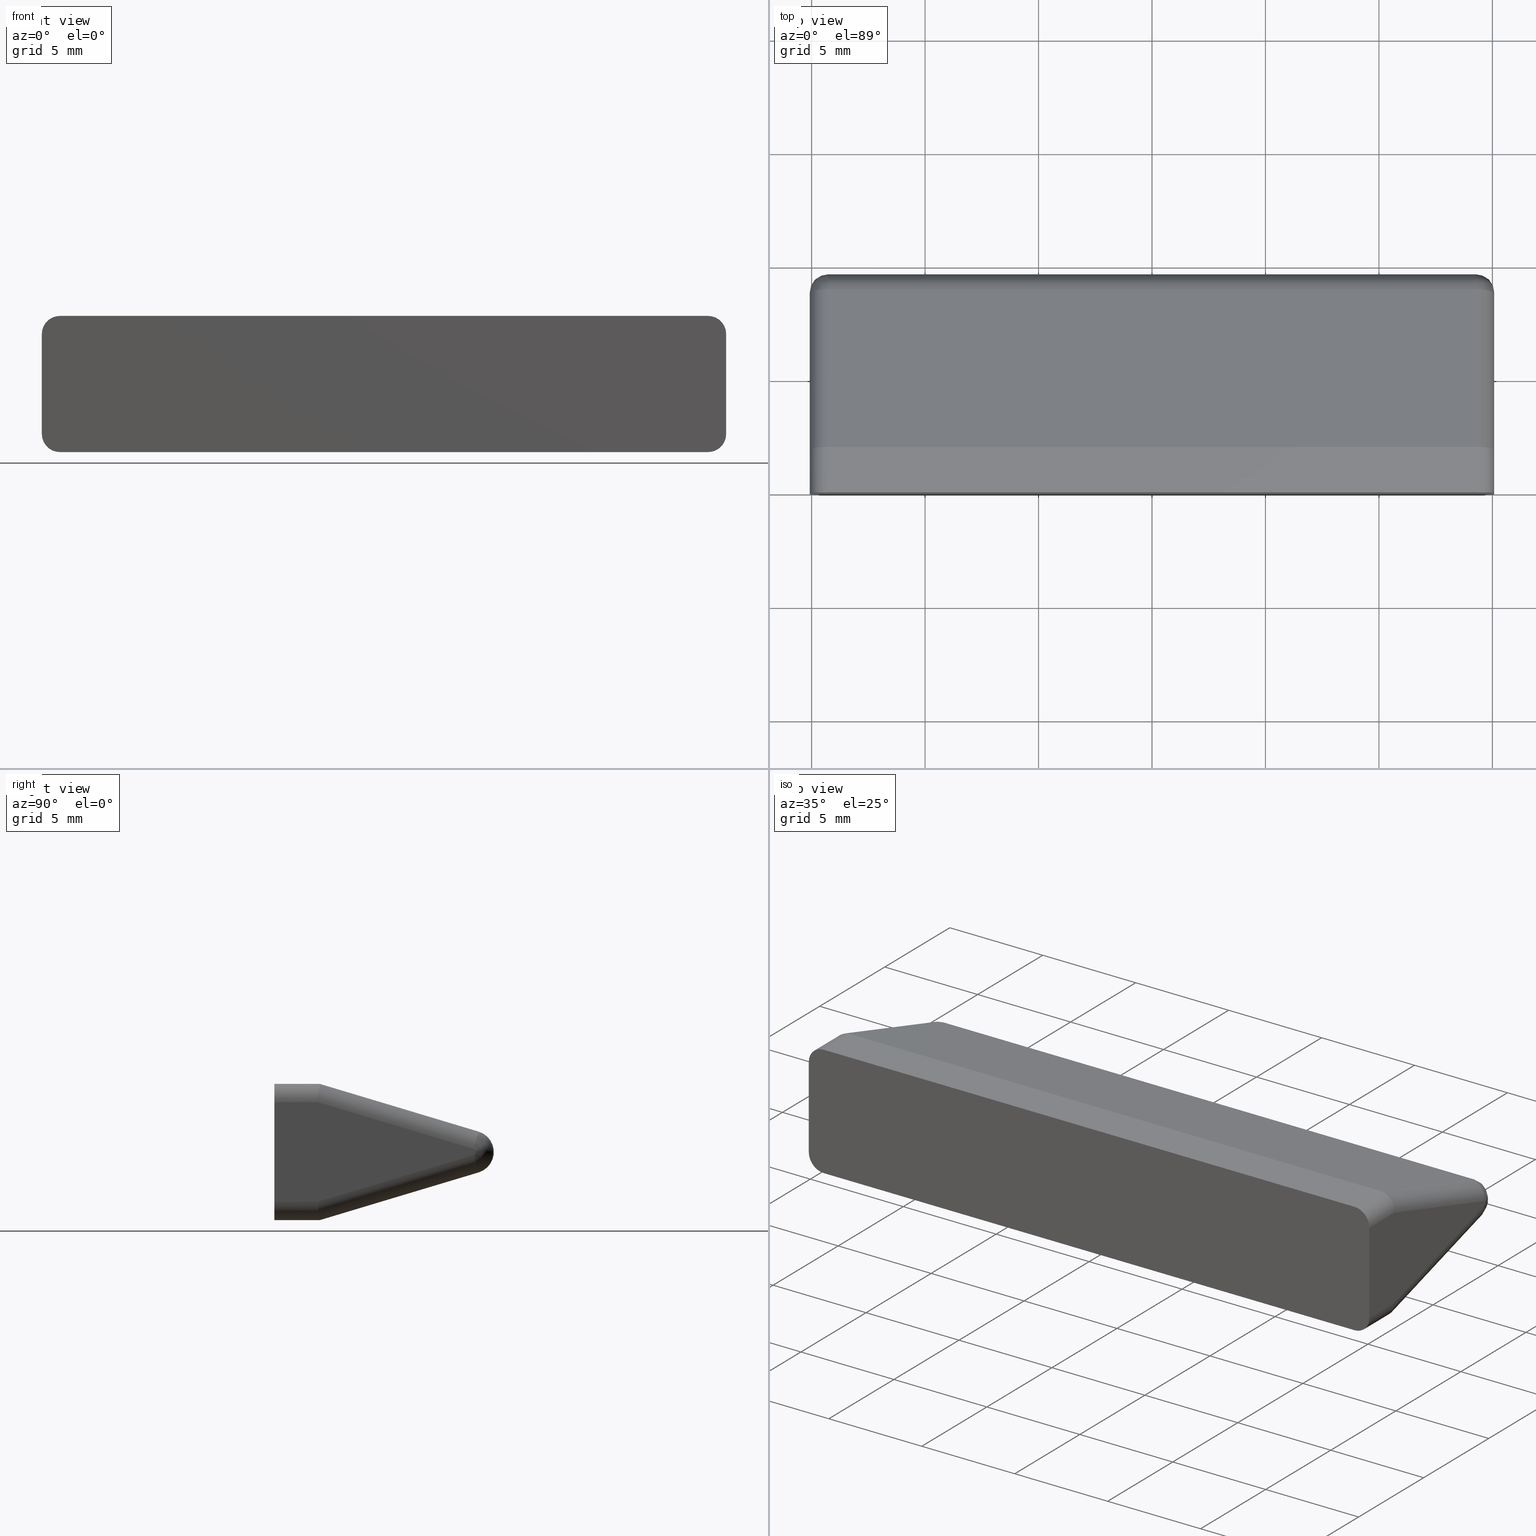
[diagram: canonical four-view strip — front | top / right | iso, engineering-drawing reading convention]
A machine part, canonical four-view strip (front | top / right | iso — engineering-drawing reading convention). The complete STEP part file that produces these views, byte-faithful:
ISO-10303-21;
HEADER;
/* Generated by software containing ST-Developer
 * from STEP Tools, Inc. (www.steptools.com) 
 */

FILE_DESCRIPTION(
/* description */ ('WKZ-0468'),
/* implementation_level */ '2;1');

FILE_NAME(
/* name */ 'O_3_01_06_07_00_WKZ-0468.stp',
/* time_stamp */ '2025-11-14T12:48:47+01:00',
/* author */ ('d.fischer'),
/* organization */ (''),
/* preprocessor_version */ 'ST-DEVELOPER v20',
/* originating_system */ 'Autodesk Inventor 2025',
/* authorisation */ '');

FILE_SCHEMA (('AUTOMOTIVE_DESIGN { 1 0 10303 214 3 1 1 }'));
ENDSEC;

DATA;
#10=MECHANICAL_DESIGN_GEOMETRIC_PRESENTATION_REPRESENTATION('',(#13),#554);
#11=SHAPE_REPRESENTATION_RELATIONSHIP('SRR','None',#561,#12);
#12=ADVANCED_BREP_SHAPE_REPRESENTATION('',(#14),#553);
#13=STYLED_ITEM('',(#570),#14);
#14=MANIFOLD_SOLID_BREP('Volumenk\X\F6rper1',#295);
#15=PLANE('',#332);
#16=PLANE('',#333);
#17=PLANE('',#345);
#18=PLANE('',#346);
#19=PLANE('',#347);
#20=PLANE('',#348);
#21=PLANE('',#349);
#22=(
BOUNDED_SURFACE()
B_SPLINE_SURFACE(2,2,((#459,#460,#461,#462,#463),(#464,#465,#466,#467,#468),
(#469,#470,#471,#472,#473)),.UNSPECIFIED.,.F.,.F.,.F.)
B_SPLINE_SURFACE_WITH_KNOTS((3,3),(3,2,3),(0.,1.5707963267949),(0.291803985665201,
1.5707963267949,2.84978866792458),.UNSPECIFIED.)
GEOMETRIC_REPRESENTATION_ITEM()
RATIONAL_B_SPLINE_SURFACE(((1.,0.802396540709826,1.,0.802396540709826,1.),
(0.707106781186542,0.567380035136542,0.707106781186542,0.567380035136542,
0.707106781186542),(1.,0.802396540709826,1.,0.802396540709826,1.)))
REPRESENTATION_ITEM('')
SURFACE()
);
#23=(
BOUNDED_SURFACE()
B_SPLINE_SURFACE(2,2,((#516,#517,#518,#519,#520),(#521,#522,#523,#524,#525),
(#526,#527,#528,#529,#530)),.UNSPECIFIED.,.F.,.F.,.F.)
B_SPLINE_SURFACE_WITH_KNOTS((3,3),(3,2,3),(0.,1.5707963267949),(0.291803985665213,
1.5707963267949,2.84978866792458),.UNSPECIFIED.)
GEOMETRIC_REPRESENTATION_ITEM()
RATIONAL_B_SPLINE_SURFACE(((1.,0.802396540709828,1.,0.802396540709828,1.),
(0.707106781186543,0.567380035136543,0.707106781186543,0.567380035136543,
0.707106781186543),(1.,0.802396540709828,1.,0.802396540709828,1.)))
REPRESENTATION_ITEM('')
SURFACE()
);
#24=FACE_OUTER_BOUND('',#42,.T.);
#25=FACE_OUTER_BOUND('',#43,.T.);
#26=FACE_OUTER_BOUND('',#44,.T.);
#27=FACE_OUTER_BOUND('',#45,.T.);
#28=FACE_OUTER_BOUND('',#46,.T.);
#29=FACE_OUTER_BOUND('',#47,.T.);
#30=FACE_OUTER_BOUND('',#48,.T.);
#31=FACE_OUTER_BOUND('',#49,.T.);
#32=FACE_OUTER_BOUND('',#50,.T.);
#33=FACE_OUTER_BOUND('',#51,.T.);
#34=FACE_OUTER_BOUND('',#52,.T.);
#35=FACE_OUTER_BOUND('',#53,.T.);
#36=FACE_OUTER_BOUND('',#54,.T.);
#37=FACE_OUTER_BOUND('',#55,.T.);
#38=FACE_OUTER_BOUND('',#56,.T.);
#39=FACE_OUTER_BOUND('',#57,.T.);
#40=FACE_OUTER_BOUND('',#58,.T.);
#41=FACE_OUTER_BOUND('',#59,.T.);
#42=EDGE_LOOP('',(#188,#189,#190,#191));
#43=EDGE_LOOP('',(#192,#193,#194,#195));
#44=EDGE_LOOP('',(#196,#197,#198,#199));
#45=EDGE_LOOP('',(#200,#201,#202,#203));
#46=EDGE_LOOP('',(#204,#205,#206,#207));
#47=EDGE_LOOP('',(#208,#209,#210,#211));
#48=EDGE_LOOP('',(#212,#213,#214,#215));
#49=EDGE_LOOP('',(#216,#217,#218,#219));
#50=EDGE_LOOP('',(#220,#221,#222,#223));
#51=EDGE_LOOP('',(#224,#225,#226,#227));
#52=EDGE_LOOP('',(#228,#229,#230,#231));
#53=EDGE_LOOP('',(#232,#233,#234,#235));
#54=EDGE_LOOP('',(#236,#237,#238,#239));
#55=EDGE_LOOP('',(#240,#241,#242,#243));
#56=EDGE_LOOP('',(#244,#245,#246,#247));
#57=EDGE_LOOP('',(#248,#249,#250,#251,#252,#253));
#58=EDGE_LOOP('',(#254,#255,#256,#257,#258,#259,#260,#261));
#59=EDGE_LOOP('',(#262,#263,#264,#265,#266,#267));
#60=ELLIPSE('',#320,0.808591141618024,0.8);
#61=ELLIPSE('',#323,0.808591141618024,0.8);
#62=ELLIPSE('',#336,0.808591141618024,0.8);
#63=ELLIPSE('',#339,0.808591141618024,0.8);
#64=CIRCLE('',#319,0.8);
#65=CIRCLE('',#322,0.8);
#66=CIRCLE('',#324,0.799999999999998);
#67=CIRCLE('',#325,0.139999999999999);
#68=CIRCLE('',#326,0.94);
#69=CIRCLE('',#329,0.8);
#70=CIRCLE('',#331,0.94);
#71=CIRCLE('',#335,0.8);
#72=CIRCLE('',#338,0.8);
#73=CIRCLE('',#340,0.799999999999998);
#74=CIRCLE('',#341,0.139999999999999);
#75=CIRCLE('',#344,0.8);
#76=LINE('',#444,#100);
#77=LINE('',#448,#101);
#78=LINE('',#453,#102);
#79=LINE('',#457,#103);
#80=LINE('',#480,#104);
#81=LINE('',#481,#105);
#82=LINE('',#484,#106);
#83=LINE('',#487,#107);
#84=LINE('',#490,#108);
#85=LINE('',#493,#109);
#86=LINE('',#496,#110);
#87=LINE('',#497,#111);
#88=LINE('',#500,#112);
#89=LINE('',#501,#113);
#90=LINE('',#506,#114);
#91=LINE('',#510,#115);
#92=LINE('',#514,#116);
#93=LINE('',#535,#117);
#94=LINE('',#538,#118);
#95=LINE('',#541,#119);
#96=LINE('',#543,#120);
#97=LINE('',#545,#121);
#98=LINE('',#547,#122);
#99=LINE('',#549,#123);
#100=VECTOR('',#354,10.);
#101=VECTOR('',#357,10.);
#102=VECTOR('',#362,10.);
#103=VECTOR('',#365,10.);
#104=VECTOR('',#376,10.);
#105=VECTOR('',#377,10.);
#106=VECTOR('',#380,10.);
#107=VECTOR('',#383,10.);
#108=VECTOR('',#386,10.);
#109=VECTOR('',#389,10.);
#110=VECTOR('',#392,10.);
#111=VECTOR('',#393,10.);
#112=VECTOR('',#396,10.);
#113=VECTOR('',#397,10.);
#114=VECTOR('',#402,10.);
#115=VECTOR('',#407,10.);
#116=VECTOR('',#410,10.);
#117=VECTOR('',#419,10.);
#118=VECTOR('',#422,10.);
#119=VECTOR('',#425,10.);
#120=VECTOR('',#428,10.);
#121=VECTOR('',#431,10.);
#122=VECTOR('',#434,10.);
#123=VECTOR('',#437,10.);
#124=VERTEX_POINT('',#442);
#125=VERTEX_POINT('',#443);
#126=VERTEX_POINT('',#445);
#127=VERTEX_POINT('',#447);
#128=VERTEX_POINT('',#451);
#129=VERTEX_POINT('',#452);
#130=VERTEX_POINT('',#454);
#131=VERTEX_POINT('',#456);
#132=VERTEX_POINT('',#474);
#133=VERTEX_POINT('',#475);
#134=VERTEX_POINT('',#483);
#135=VERTEX_POINT('',#485);
#136=VERTEX_POINT('',#489);
#137=VERTEX_POINT('',#491);
#138=VERTEX_POINT('',#495);
#139=VERTEX_POINT('',#499);
#140=VERTEX_POINT('',#503);
#141=VERTEX_POINT('',#505);
#142=VERTEX_POINT('',#509);
#143=VERTEX_POINT('',#511);
#144=VERTEX_POINT('',#513);
#145=VERTEX_POINT('',#531);
#146=VERTEX_POINT('',#537);
#147=VERTEX_POINT('',#539);
#148=EDGE_CURVE('',#124,#125,#76,.T.);
#149=EDGE_CURVE('',#125,#126,#64,.T.);
#150=EDGE_CURVE('',#126,#127,#77,.T.);
#151=EDGE_CURVE('',#127,#124,#60,.T.);
#152=EDGE_CURVE('',#128,#129,#78,.T.);
#153=EDGE_CURVE('',#129,#130,#65,.T.);
#154=EDGE_CURVE('',#130,#131,#79,.T.);
#155=EDGE_CURVE('',#131,#128,#61,.T.);
#156=EDGE_CURVE('',#132,#133,#66,.T.);
#157=EDGE_CURVE('',#133,#130,#67,.T.);
#158=EDGE_CURVE('',#129,#132,#68,.T.);
#159=EDGE_CURVE('',#127,#133,#80,.T.);
#160=EDGE_CURVE('',#132,#124,#81,.T.);
#161=EDGE_CURVE('',#131,#134,#82,.T.);
#162=EDGE_CURVE('',#134,#135,#69,.T.);
#163=EDGE_CURVE('',#135,#128,#83,.T.);
#164=EDGE_CURVE('',#129,#136,#84,.T.);
#165=EDGE_CURVE('',#137,#136,#70,.T.);
#166=EDGE_CURVE('',#132,#137,#85,.T.);
#167=EDGE_CURVE('',#128,#138,#86,.T.);
#168=EDGE_CURVE('',#136,#138,#87,.T.);
#169=EDGE_CURVE('',#135,#139,#88,.T.);
#170=EDGE_CURVE('',#138,#139,#89,.T.);
#171=EDGE_CURVE('',#139,#140,#71,.T.);
#172=EDGE_CURVE('',#140,#141,#90,.T.);
#173=EDGE_CURVE('',#141,#138,#62,.T.);
#174=EDGE_CURVE('',#142,#137,#91,.T.);
#175=EDGE_CURVE('',#137,#143,#72,.T.);
#176=EDGE_CURVE('',#143,#144,#92,.T.);
#177=EDGE_CURVE('',#144,#142,#63,.T.);
#178=EDGE_CURVE('',#136,#145,#73,.T.);
#179=EDGE_CURVE('',#145,#143,#74,.T.);
#180=EDGE_CURVE('',#141,#145,#93,.T.);
#181=EDGE_CURVE('',#144,#146,#94,.T.);
#182=EDGE_CURVE('',#146,#147,#75,.T.);
#183=EDGE_CURVE('',#147,#142,#95,.T.);
#184=EDGE_CURVE('',#124,#142,#96,.T.);
#185=EDGE_CURVE('',#147,#125,#97,.T.);
#186=EDGE_CURVE('',#126,#134,#98,.T.);
#187=EDGE_CURVE('',#140,#146,#99,.T.);
#188=ORIENTED_EDGE('',*,*,#148,.T.);
#189=ORIENTED_EDGE('',*,*,#149,.T.);
#190=ORIENTED_EDGE('',*,*,#150,.T.);
#191=ORIENTED_EDGE('',*,*,#151,.T.);
#192=ORIENTED_EDGE('',*,*,#152,.T.);
#193=ORIENTED_EDGE('',*,*,#153,.T.);
#194=ORIENTED_EDGE('',*,*,#154,.T.);
#195=ORIENTED_EDGE('',*,*,#155,.T.);
#196=ORIENTED_EDGE('',*,*,#156,.T.);
#197=ORIENTED_EDGE('',*,*,#157,.T.);
#198=ORIENTED_EDGE('',*,*,#153,.F.);
#199=ORIENTED_EDGE('',*,*,#158,.T.);
#200=ORIENTED_EDGE('',*,*,#159,.T.);
#201=ORIENTED_EDGE('',*,*,#156,.F.);
#202=ORIENTED_EDGE('',*,*,#160,.T.);
#203=ORIENTED_EDGE('',*,*,#151,.F.);
#204=ORIENTED_EDGE('',*,*,#161,.T.);
#205=ORIENTED_EDGE('',*,*,#162,.T.);
#206=ORIENTED_EDGE('',*,*,#163,.T.);
#207=ORIENTED_EDGE('',*,*,#155,.F.);
#208=ORIENTED_EDGE('',*,*,#158,.F.);
#209=ORIENTED_EDGE('',*,*,#164,.T.);
#210=ORIENTED_EDGE('',*,*,#165,.F.);
#211=ORIENTED_EDGE('',*,*,#166,.F.);
#212=ORIENTED_EDGE('',*,*,#152,.F.);
#213=ORIENTED_EDGE('',*,*,#167,.T.);
#214=ORIENTED_EDGE('',*,*,#168,.F.);
#215=ORIENTED_EDGE('',*,*,#164,.F.);
#216=ORIENTED_EDGE('',*,*,#163,.F.);
#217=ORIENTED_EDGE('',*,*,#169,.T.);
#218=ORIENTED_EDGE('',*,*,#170,.F.);
#219=ORIENTED_EDGE('',*,*,#167,.F.);
#220=ORIENTED_EDGE('',*,*,#170,.T.);
#221=ORIENTED_EDGE('',*,*,#171,.T.);
#222=ORIENTED_EDGE('',*,*,#172,.T.);
#223=ORIENTED_EDGE('',*,*,#173,.T.);
#224=ORIENTED_EDGE('',*,*,#174,.T.);
#225=ORIENTED_EDGE('',*,*,#175,.T.);
#226=ORIENTED_EDGE('',*,*,#176,.T.);
#227=ORIENTED_EDGE('',*,*,#177,.T.);
#228=ORIENTED_EDGE('',*,*,#178,.T.);
#229=ORIENTED_EDGE('',*,*,#179,.T.);
#230=ORIENTED_EDGE('',*,*,#175,.F.);
#231=ORIENTED_EDGE('',*,*,#165,.T.);
#232=ORIENTED_EDGE('',*,*,#180,.T.);
#233=ORIENTED_EDGE('',*,*,#178,.F.);
#234=ORIENTED_EDGE('',*,*,#168,.T.);
#235=ORIENTED_EDGE('',*,*,#173,.F.);
#236=ORIENTED_EDGE('',*,*,#181,.T.);
#237=ORIENTED_EDGE('',*,*,#182,.T.);
#238=ORIENTED_EDGE('',*,*,#183,.T.);
#239=ORIENTED_EDGE('',*,*,#177,.F.);
#240=ORIENTED_EDGE('',*,*,#160,.F.);
#241=ORIENTED_EDGE('',*,*,#166,.T.);
#242=ORIENTED_EDGE('',*,*,#174,.F.);
#243=ORIENTED_EDGE('',*,*,#184,.F.);
#244=ORIENTED_EDGE('',*,*,#148,.F.);
#245=ORIENTED_EDGE('',*,*,#184,.T.);
#246=ORIENTED_EDGE('',*,*,#183,.F.);
#247=ORIENTED_EDGE('',*,*,#185,.T.);
#248=ORIENTED_EDGE('',*,*,#150,.F.);
#249=ORIENTED_EDGE('',*,*,#186,.T.);
#250=ORIENTED_EDGE('',*,*,#161,.F.);
#251=ORIENTED_EDGE('',*,*,#154,.F.);
#252=ORIENTED_EDGE('',*,*,#157,.F.);
#253=ORIENTED_EDGE('',*,*,#159,.F.);
#254=ORIENTED_EDGE('',*,*,#149,.F.);
#255=ORIENTED_EDGE('',*,*,#185,.F.);
#256=ORIENTED_EDGE('',*,*,#182,.F.);
#257=ORIENTED_EDGE('',*,*,#187,.F.);
#258=ORIENTED_EDGE('',*,*,#171,.F.);
#259=ORIENTED_EDGE('',*,*,#169,.F.);
#260=ORIENTED_EDGE('',*,*,#162,.F.);
#261=ORIENTED_EDGE('',*,*,#186,.F.);
#262=ORIENTED_EDGE('',*,*,#172,.F.);
#263=ORIENTED_EDGE('',*,*,#187,.T.);
#264=ORIENTED_EDGE('',*,*,#181,.F.);
#265=ORIENTED_EDGE('',*,*,#176,.F.);
#266=ORIENTED_EDGE('',*,*,#179,.F.);
#267=ORIENTED_EDGE('',*,*,#180,.F.);
#268=CYLINDRICAL_SURFACE('',#318,0.8);
#269=CYLINDRICAL_SURFACE('',#321,0.8);
#270=CYLINDRICAL_SURFACE('',#327,0.8);
#271=CYLINDRICAL_SURFACE('',#328,0.8);
#272=CYLINDRICAL_SURFACE('',#330,0.94);
#273=CYLINDRICAL_SURFACE('',#334,0.8);
#274=CYLINDRICAL_SURFACE('',#337,0.8);
#275=CYLINDRICAL_SURFACE('',#342,0.8);
#276=CYLINDRICAL_SURFACE('',#343,0.8);
#277=ADVANCED_FACE('',(#24),#268,.T.);
#278=ADVANCED_FACE('',(#25),#269,.T.);
#279=ADVANCED_FACE('',(#26),#22,.F.);
#280=ADVANCED_FACE('',(#27),#270,.T.);
#281=ADVANCED_FACE('',(#28),#271,.T.);
#282=ADVANCED_FACE('',(#29),#272,.T.);
#283=ADVANCED_FACE('',(#30),#15,.T.);
#284=ADVANCED_FACE('',(#31),#16,.T.);
#285=ADVANCED_FACE('',(#32),#273,.T.);
#286=ADVANCED_FACE('',(#33),#274,.T.);
#287=ADVANCED_FACE('',(#34),#23,.F.);
#288=ADVANCED_FACE('',(#35),#275,.T.);
#289=ADVANCED_FACE('',(#36),#276,.T.);
#290=ADVANCED_FACE('',(#37),#17,.T.);
#291=ADVANCED_FACE('',(#38),#18,.T.);
#292=ADVANCED_FACE('',(#39),#19,.F.);
#293=ADVANCED_FACE('',(#40),#20,.T.);
#294=ADVANCED_FACE('',(#41),#21,.T.);
#295=CLOSED_SHELL('',(#277,#278,#279,#280,#281,#282,#283,#284,#285,#286,
#287,#288,#289,#290,#291,#292,#293,#294));
#296=DERIVED_UNIT_ELEMENT(#299,1.);
#297=DERIVED_UNIT_ELEMENT(#556,-3.);
#298=DIMENSIONAL_EXPONENTS(0.,1.,0.,0.,0.,0.,0.);
#299=(
CONVERSION_BASED_UNIT('gram',#301)
MASS_UNIT()
NAMED_UNIT(#298)
);
#300=(
MASS_UNIT()
NAMED_UNIT(*)
SI_UNIT(.KILO.,.GRAM.)
);
#301=MASS_MEASURE_WITH_UNIT(MASS_MEASURE(0.001),#300);
#302=DERIVED_UNIT((#296,#297));
#303=MEASURE_REPRESENTATION_ITEM('density measure',
POSITIVE_RATIO_MEASURE(1.),#302);
#304=PROPERTY_DEFINITION_REPRESENTATION(#309,#306);
#305=PROPERTY_DEFINITION_REPRESENTATION(#310,#307);
#306=REPRESENTATION('material name',(#308),#553);
#307=REPRESENTATION('density',(#303),#553);
#308=DESCRIPTIVE_REPRESENTATION_ITEM('Generisch','Generisch');
#309=PROPERTY_DEFINITION('material property','material name',#563);
#310=PROPERTY_DEFINITION('material property','density of part',#563);
#311=DATE_TIME_ROLE('creation_date');
#312=APPLIED_DATE_AND_TIME_ASSIGNMENT(#313,#311,(#563));
#313=DATE_AND_TIME(#314,#315);
#314=CALENDAR_DATE(2025,10,4);
#315=LOCAL_TIME(0,0,0.,#316);
#316=COORDINATED_UNIVERSAL_TIME_OFFSET(0,0,.BEHIND.);
#317=AXIS2_PLACEMENT_3D('',#440,#350,#351);
#318=AXIS2_PLACEMENT_3D('',#441,#352,#353);
#319=AXIS2_PLACEMENT_3D('',#446,#355,#356);
#320=AXIS2_PLACEMENT_3D('',#449,#358,#359);
#321=AXIS2_PLACEMENT_3D('',#450,#360,#361);
#322=AXIS2_PLACEMENT_3D('',#455,#363,#364);
#323=AXIS2_PLACEMENT_3D('',#458,#366,#367);
#324=AXIS2_PLACEMENT_3D('',#476,#368,#369);
#325=AXIS2_PLACEMENT_3D('',#477,#370,#371);
#326=AXIS2_PLACEMENT_3D('',#478,#372,#373);
#327=AXIS2_PLACEMENT_3D('',#479,#374,#375);
#328=AXIS2_PLACEMENT_3D('',#482,#378,#379);
#329=AXIS2_PLACEMENT_3D('',#486,#381,#382);
#330=AXIS2_PLACEMENT_3D('',#488,#384,#385);
#331=AXIS2_PLACEMENT_3D('',#492,#387,#388);
#332=AXIS2_PLACEMENT_3D('',#494,#390,#391);
#333=AXIS2_PLACEMENT_3D('',#498,#394,#395);
#334=AXIS2_PLACEMENT_3D('',#502,#398,#399);
#335=AXIS2_PLACEMENT_3D('',#504,#400,#401);
#336=AXIS2_PLACEMENT_3D('',#507,#403,#404);
#337=AXIS2_PLACEMENT_3D('',#508,#405,#406);
#338=AXIS2_PLACEMENT_3D('',#512,#408,#409);
#339=AXIS2_PLACEMENT_3D('',#515,#411,#412);
#340=AXIS2_PLACEMENT_3D('',#532,#413,#414);
#341=AXIS2_PLACEMENT_3D('',#533,#415,#416);
#342=AXIS2_PLACEMENT_3D('',#534,#417,#418);
#343=AXIS2_PLACEMENT_3D('',#536,#420,#421);
#344=AXIS2_PLACEMENT_3D('',#540,#423,#424);
#345=AXIS2_PLACEMENT_3D('',#542,#426,#427);
#346=AXIS2_PLACEMENT_3D('',#544,#429,#430);
#347=AXIS2_PLACEMENT_3D('',#546,#432,#433);
#348=AXIS2_PLACEMENT_3D('',#548,#435,#436);
#349=AXIS2_PLACEMENT_3D('',#550,#438,#439);
#350=DIRECTION('axis',(0.,0.,1.));
#351=DIRECTION('refdir',(1.,0.,0.));
#352=DIRECTION('center_axis',(0.,-1.,0.));
#353=DIRECTION('ref_axis',(-0.707106781186548,0.,-0.707106781186547));
#354=DIRECTION('',(0.,-1.,0.));
#355=DIRECTION('center_axis',(0.,1.,0.));
#356=DIRECTION('ref_axis',(-0.707106781186548,0.,-0.707106781186547));
#357=DIRECTION('',(0.,1.,0.));
#358=DIRECTION('center_axis',(-3.43258467562344E-16,-0.989375172227546,
-0.145384898045549));
#359=DIRECTION('ref_axis',(-2.33594692453309E-15,0.145384898045549,-0.989375172227545));
#360=DIRECTION('center_axis',(0.,0.95772646284057,-0.287680417086199));
#361=DIRECTION('ref_axis',(-0.707106781186548,0.203420773736226,0.677214876396373));
#362=DIRECTION('',(0.,0.95772646284057,-0.287680417086199));
#363=DIRECTION('center_axis',(0.,-0.957726462840571,0.287680417086199));
#364=DIRECTION('ref_axis',(0.,0.287680417086199,0.957726462840571));
#365=DIRECTION('',(0.,-0.95772646284057,0.287680417086199));
#366=DIRECTION('center_axis',(0.,0.989375172227546,-0.145384898045548));
#367=DIRECTION('ref_axis',(0.,0.145384898045548,0.989375172227546));
#368=DIRECTION('center_axis',(0.,0.957726462840571,0.287680417086198));
#369=DIRECTION('ref_axis',(0.,0.287680417086198,-0.957726462840571));
#370=DIRECTION('center_axis',(1.,0.,0.));
#371=DIRECTION('ref_axis',(0.,1.,6.6436218228899E-16));
#372=DIRECTION('center_axis',(-1.,0.,0.));
#373=DIRECTION('ref_axis',(0.,1.,6.6436218228899E-16));
#374=DIRECTION('center_axis',(0.,-0.957726462840571,-0.287680417086199));
#375=DIRECTION('ref_axis',(-0.707106781186547,0.203420773736226,-0.677214876396373));
#376=DIRECTION('',(0.,0.95772646284057,0.287680417086199));
#377=DIRECTION('',(0.,-0.95772646284057,-0.287680417086199));
#378=DIRECTION('center_axis',(0.,1.,0.));
#379=DIRECTION('ref_axis',(-0.707106781186548,0.,0.707106781186547));
#380=DIRECTION('',(0.,-1.,0.));
#381=DIRECTION('center_axis',(0.,1.,0.));
#382=DIRECTION('ref_axis',(-0.707106781186548,0.,0.707106781186547));
#383=DIRECTION('',(0.,1.,0.));
#384=DIRECTION('center_axis',(1.,0.,0.));
#385=DIRECTION('ref_axis',(0.,0.287680417086198,-0.957726462840571));
#386=DIRECTION('',(1.,0.,0.));
#387=DIRECTION('center_axis',(1.,0.,0.));
#388=DIRECTION('ref_axis',(0.,1.,6.6436218228899E-16));
#389=DIRECTION('',(1.,0.,0.));
#390=DIRECTION('center_axis',(0.,0.287680417086199,0.95772646284057));
#391=DIRECTION('ref_axis',(0.,-0.95772646284057,0.287680417086199));
#392=DIRECTION('',(1.,0.,0.));
#393=DIRECTION('',(0.,-0.95772646284057,0.287680417086199));
#394=DIRECTION('center_axis',(0.,0.,1.));
#395=DIRECTION('ref_axis',(0.,-1.,0.));
#396=DIRECTION('',(1.,0.,0.));
#397=DIRECTION('',(0.,-1.,0.));
#398=DIRECTION('center_axis',(0.,-1.,0.));
#399=DIRECTION('ref_axis',(0.707106781186548,0.,0.707106781186547));
#400=DIRECTION('center_axis',(0.,1.,0.));
#401=DIRECTION('ref_axis',(0.707106781186548,0.,0.707106781186547));
#402=DIRECTION('',(0.,1.,0.));
#403=DIRECTION('center_axis',(0.,-0.989375172227546,0.145384898045548));
#404=DIRECTION('ref_axis',(0.,0.145384898045548,0.989375172227546));
#405=DIRECTION('center_axis',(0.,0.957726462840571,0.287680417086199));
#406=DIRECTION('ref_axis',(0.707106781186547,0.203420773736226,-0.677214876396373));
#407=DIRECTION('',(0.,0.95772646284057,0.287680417086199));
#408=DIRECTION('center_axis',(0.,-0.957726462840571,-0.287680417086198));
#409=DIRECTION('ref_axis',(0.,0.287680417086197,-0.957726462840571));
#410=DIRECTION('',(0.,-0.95772646284057,-0.287680417086199));
#411=DIRECTION('center_axis',(0.,0.989375172227546,0.145384898045549));
#412=DIRECTION('ref_axis',(0.,0.145384898045549,-0.989375172227545));
#413=DIRECTION('center_axis',(0.,0.957726462840571,-0.287680417086197));
#414=DIRECTION('ref_axis',(0.,0.287680417086197,0.957726462840571));
#415=DIRECTION('center_axis',(-1.,0.,0.));
#416=DIRECTION('ref_axis',(0.,1.,6.6436218228899E-16));
#417=DIRECTION('center_axis',(0.,-0.95772646284057,0.287680417086199));
#418=DIRECTION('ref_axis',(0.707106781186548,0.203420773736226,0.677214876396373));
#419=DIRECTION('',(0.,0.95772646284057,-0.287680417086199));
#420=DIRECTION('center_axis',(0.,1.,0.));
#421=DIRECTION('ref_axis',(0.707106781186548,0.,-0.707106781186547));
#422=DIRECTION('',(0.,-1.,0.));
#423=DIRECTION('center_axis',(0.,1.,0.));
#424=DIRECTION('ref_axis',(0.707106781186548,0.,-0.707106781186547));
#425=DIRECTION('',(0.,1.,0.));
#426=DIRECTION('center_axis',(0.,0.287680417086199,-0.957726462840571));
#427=DIRECTION('ref_axis',(0.,0.95772646284057,0.287680417086199));
#428=DIRECTION('',(1.,0.,0.));
#429=DIRECTION('center_axis',(0.,0.,-1.));
#430=DIRECTION('ref_axis',(0.,1.,0.));
#431=DIRECTION('',(-1.,0.,0.));
#432=DIRECTION('center_axis',(1.,0.,0.));
#433=DIRECTION('ref_axis',(0.,0.,-1.));
#434=DIRECTION('',(0.,0.,1.));
#435=DIRECTION('center_axis',(0.,-1.,0.));
#436=DIRECTION('ref_axis',(0.,0.,-1.));
#437=DIRECTION('',(0.,0.,-1.));
#438=DIRECTION('center_axis',(1.,0.,0.));
#439=DIRECTION('ref_axis',(0.,0.,-1.));
#440=CARTESIAN_POINT('',(0.,0.,0.));
#441=CARTESIAN_POINT('Origin',(-14.28,2.41747130991928,-2.2));
#442=CARTESIAN_POINT('',(-14.28,2.00999999999999,-3.));
#443=CARTESIAN_POINT('',(-14.28,0.,-3.));
#444=CARTESIAN_POINT('',(-14.28,2.41747130991928,-3.));
#445=CARTESIAN_POINT('',(-15.08,0.,-2.2));
#446=CARTESIAN_POINT('Origin',(-14.28,0.,-2.2));
#447=CARTESIAN_POINT('',(-15.08,1.89244305931532,-2.2));
#448=CARTESIAN_POINT('',(-15.08,2.41747130991928,-2.2));
#449=CARTESIAN_POINT('Origin',(-14.28,1.89244305931532,-2.2));
#450=CARTESIAN_POINT('Origin',(-14.28,6.98386195733329,0.670647341415071));
#451=CARTESIAN_POINT('',(-14.28,2.00999999999999,3.));
#452=CARTESIAN_POINT('',(-14.28,9.00030483173816,0.900262875070134));
#453=CARTESIAN_POINT('',(-14.28,7.21400629100225,1.43682851168753));
#454=CARTESIAN_POINT('',(-15.08,8.7701604980692,0.134081704797678));
#455=CARTESIAN_POINT('Origin',(-14.28,8.7701604980692,0.134081704797678));
#456=CARTESIAN_POINT('',(-15.08,1.89244305931532,2.2));
#457=CARTESIAN_POINT('',(-15.08,6.98386195733329,0.670647341415071));
#458=CARTESIAN_POINT('Origin',(-14.28,1.89244305931532,2.2));
#459=CARTESIAN_POINT('Ctrl Pts',(-14.28,9.00030483173815,0.90026287507014));
#460=CARTESIAN_POINT('Ctrl Pts',(-14.28,9.66988523967713,0.699135331348199));
#461=CARTESIAN_POINT('Ctrl Pts',(-14.28,9.66988523967714,0.));
#462=CARTESIAN_POINT('Ctrl Pts',(-14.28,9.66988523967714,-0.699135331348194));
#463=CARTESIAN_POINT('Ctrl Pts',(-14.28,9.00030483173816,-0.900262875070136));
#464=CARTESIAN_POINT('Ctrl Pts',(-15.08,9.00030483173815,0.90026287507014));
#465=CARTESIAN_POINT('Ctrl Pts',(-15.08,9.66988523967713,0.699135331348199));
#466=CARTESIAN_POINT('Ctrl Pts',(-15.08,9.66988523967714,0.));
#467=CARTESIAN_POINT('Ctrl Pts',(-15.08,9.66988523967714,-0.699135331348194));
#468=CARTESIAN_POINT('Ctrl Pts',(-15.08,9.00030483173816,-0.900262875070136));
#469=CARTESIAN_POINT('Ctrl Pts',(-15.08,8.7701604980692,0.134081704797678));
#470=CARTESIAN_POINT('Ctrl Pts',(-15.08,8.86988523967713,0.104126538711432));
#471=CARTESIAN_POINT('Ctrl Pts',(-15.08,8.86988523967713,0.));
#472=CARTESIAN_POINT('Ctrl Pts',(-15.08,8.86988523967713,-0.104126538711431));
#473=CARTESIAN_POINT('Ctrl Pts',(-15.08,8.7701604980692,-0.134081704797677));
#474=CARTESIAN_POINT('',(-14.28,9.00030483173816,-0.900262875070134));
#475=CARTESIAN_POINT('',(-15.08,8.7701604980692,-0.134081704797679));
#476=CARTESIAN_POINT('Origin',(-14.28,8.7701604980692,-0.134081704797679));
#477=CARTESIAN_POINT('Origin',(-15.08,8.72988523967713,0.));
#478=CARTESIAN_POINT('Origin',(-14.28,8.72988523967713,0.));
#479=CARTESIAN_POINT('Origin',(-14.28,3.48870954146421,-1.72051590388));
#480=CARTESIAN_POINT('',(-15.08,3.48870954146421,-1.72051590388));
#481=CARTESIAN_POINT('',(-14.28,3.71885387513317,-2.48669707415246));
#482=CARTESIAN_POINT('Origin',(-14.28,3.42247130991928,2.2));
#483=CARTESIAN_POINT('',(-15.08,0.,2.2));
#484=CARTESIAN_POINT('',(-15.08,3.42247130991928,2.2));
#485=CARTESIAN_POINT('',(-14.28,0.,3.));
#486=CARTESIAN_POINT('Origin',(-14.28,0.,2.2));
#487=CARTESIAN_POINT('',(-14.28,3.42247130991928,3.));
#488=CARTESIAN_POINT('Origin',(0.,8.72988523967713,0.));
#489=CARTESIAN_POINT('',(14.28,9.00030483173816,0.900262875070134));
#490=CARTESIAN_POINT('',(0.,9.00030483173816,0.900262875070134));
#491=CARTESIAN_POINT('',(14.28,9.00030483173816,-0.900262875070134));
#492=CARTESIAN_POINT('Origin',(14.28,8.72988523967713,0.));
#493=CARTESIAN_POINT('',(0.,9.00030483173816,-0.900262875070134));
#494=CARTESIAN_POINT('Origin',(0.,9.00030483173816,0.900262875070134));
#495=CARTESIAN_POINT('',(14.28,2.00999999999999,3.));
#496=CARTESIAN_POINT('',(0.,2.00999999999999,3.));
#497=CARTESIAN_POINT('',(14.28,7.21400629100225,1.43682851168753));
#498=CARTESIAN_POINT('Origin',(0.,2.00999999999999,3.));
#499=CARTESIAN_POINT('',(14.28,0.,3.));
#500=CARTESIAN_POINT('',(0.,0.,3.));
#501=CARTESIAN_POINT('',(14.28,3.42247130991928,3.));
#502=CARTESIAN_POINT('Origin',(14.28,3.42247130991928,2.2));
#503=CARTESIAN_POINT('',(15.08,0.,2.2));
#504=CARTESIAN_POINT('Origin',(14.28,0.,2.2));
#505=CARTESIAN_POINT('',(15.08,1.89244305931532,2.2));
#506=CARTESIAN_POINT('',(15.08,3.42247130991928,2.2));
#507=CARTESIAN_POINT('Origin',(14.28,1.89244305931532,2.2));
#508=CARTESIAN_POINT('Origin',(14.28,3.48870954146421,-1.72051590388));
#509=CARTESIAN_POINT('',(14.28,2.00999999999999,-3.));
#510=CARTESIAN_POINT('',(14.28,3.71885387513317,-2.48669707415246));
#511=CARTESIAN_POINT('',(15.08,8.7701604980692,-0.134081704797678));
#512=CARTESIAN_POINT('Origin',(14.28,8.7701604980692,-0.134081704797678));
#513=CARTESIAN_POINT('',(15.08,1.89244305931532,-2.2));
#514=CARTESIAN_POINT('',(15.08,3.48870954146421,-1.72051590388));
#515=CARTESIAN_POINT('Origin',(14.28,1.89244305931532,-2.2));
#516=CARTESIAN_POINT('Ctrl Pts',(14.28,9.00030483173816,-0.900262875070136));
#517=CARTESIAN_POINT('Ctrl Pts',(14.28,9.66988523967714,-0.699135331348192));
#518=CARTESIAN_POINT('Ctrl Pts',(14.28,9.66988523967714,0.));
#519=CARTESIAN_POINT('Ctrl Pts',(14.28,9.66988523967714,0.699135331348193));
#520=CARTESIAN_POINT('Ctrl Pts',(14.28,9.00030483173816,0.900262875070137));
#521=CARTESIAN_POINT('Ctrl Pts',(15.08,9.00030483173816,-0.900262875070136));
#522=CARTESIAN_POINT('Ctrl Pts',(15.08,9.66988523967714,-0.699135331348192));
#523=CARTESIAN_POINT('Ctrl Pts',(15.08,9.66988523967714,0.));
#524=CARTESIAN_POINT('Ctrl Pts',(15.08,9.66988523967713,0.699135331348193));
#525=CARTESIAN_POINT('Ctrl Pts',(15.08,9.00030483173816,0.900262875070137));
#526=CARTESIAN_POINT('Ctrl Pts',(15.08,8.7701604980692,-0.134081704797678));
#527=CARTESIAN_POINT('Ctrl Pts',(15.08,8.86988523967713,-0.104126538711431));
#528=CARTESIAN_POINT('Ctrl Pts',(15.08,8.86988523967713,0.));
#529=CARTESIAN_POINT('Ctrl Pts',(15.08,8.86988523967713,0.104126538711431));
#530=CARTESIAN_POINT('Ctrl Pts',(15.08,8.7701604980692,0.134081704797678));
#531=CARTESIAN_POINT('',(15.08,8.7701604980692,0.134081704797679));
#532=CARTESIAN_POINT('Origin',(14.28,8.7701604980692,0.134081704797679));
#533=CARTESIAN_POINT('Origin',(15.08,8.72988523967713,0.));
#534=CARTESIAN_POINT('Origin',(14.28,6.98386195733329,0.670647341415071));
#535=CARTESIAN_POINT('',(15.08,6.98386195733329,0.670647341415071));
#536=CARTESIAN_POINT('Origin',(14.28,2.41747130991928,-2.2));
#537=CARTESIAN_POINT('',(15.08,0.,-2.2));
#538=CARTESIAN_POINT('',(15.08,2.41747130991928,-2.2));
#539=CARTESIAN_POINT('',(14.28,0.,-3.));
#540=CARTESIAN_POINT('Origin',(14.28,0.,-2.2));
#541=CARTESIAN_POINT('',(14.28,2.41747130991928,-3.));
#542=CARTESIAN_POINT('Origin',(0.,2.00999999999999,-3.));
#543=CARTESIAN_POINT('',(0.,2.00999999999999,-3.));
#544=CARTESIAN_POINT('Origin',(0.,0.,-3.));
#545=CARTESIAN_POINT('',(0.,0.,-3.));
#546=CARTESIAN_POINT('Origin',(-15.08,4.83494261983857,0.));
#547=CARTESIAN_POINT('',(-15.08,0.,3.));
#548=CARTESIAN_POINT('Origin',(0.,0.,3.));
#549=CARTESIAN_POINT('',(15.08,0.,3.));
#550=CARTESIAN_POINT('Origin',(15.08,4.83494261983857,0.));
#551=UNCERTAINTY_MEASURE_WITH_UNIT(LENGTH_MEASURE(0.01),#555,
'DISTANCE_ACCURACY_VALUE',
'Maximum model space distance between geometric entities at asserted c
onnectivities');
#552=UNCERTAINTY_MEASURE_WITH_UNIT(LENGTH_MEASURE(0.01),#555,
'DISTANCE_ACCURACY_VALUE',
'Maximum model space distance between geometric entities at asserted c
onnectivities');
#553=(
GEOMETRIC_REPRESENTATION_CONTEXT(3)
GLOBAL_UNCERTAINTY_ASSIGNED_CONTEXT((#551))
GLOBAL_UNIT_ASSIGNED_CONTEXT((#555,#557,#558))
REPRESENTATION_CONTEXT('','3D')
);
#554=(
GEOMETRIC_REPRESENTATION_CONTEXT(3)
GLOBAL_UNCERTAINTY_ASSIGNED_CONTEXT((#552))
GLOBAL_UNIT_ASSIGNED_CONTEXT((#555,#557,#558))
REPRESENTATION_CONTEXT('','3D')
);
#555=(
LENGTH_UNIT()
NAMED_UNIT(*)
SI_UNIT(.MILLI.,.METRE.)
);
#556=(
LENGTH_UNIT()
NAMED_UNIT(*)
SI_UNIT(.CENTI.,.METRE.)
);
#557=(
NAMED_UNIT(*)
PLANE_ANGLE_UNIT()
SI_UNIT($,.RADIAN.)
);
#558=(
NAMED_UNIT(*)
SI_UNIT($,.STERADIAN.)
SOLID_ANGLE_UNIT()
);
#559=SHAPE_DEFINITION_REPRESENTATION(#560,#561);
#560=PRODUCT_DEFINITION_SHAPE('',$,#563);
#561=SHAPE_REPRESENTATION('',(#317),#553);
#562=PRODUCT_DEFINITION_CONTEXT('part definition',#567,'design');
#563=PRODUCT_DEFINITION('O_3_01_06_07_00_WKZ-0468',
'O_3_01_06_07_00_WKZ-0468',#564,#562);
#564=PRODUCT_DEFINITION_FORMATION('',$,#569);
#565=PRODUCT_RELATED_PRODUCT_CATEGORY('O_3_01_06_07_00_WKZ-0468',
'O_3_01_06_07_00_WKZ-0468',(#569));
#566=APPLICATION_PROTOCOL_DEFINITION('international standard',
'automotive_design',2009,#567);
#567=APPLICATION_CONTEXT(
'Core Data for Automotive Mechanical Design Process');
#568=PRODUCT_CONTEXT('part definition',#567,'mechanical');
#569=PRODUCT('O_3_01_06_07_00_WKZ-0468','O_3_01_06_07_00_WKZ-0468',
'WKZ-0468',(#568));
#570=PRESENTATION_STYLE_ASSIGNMENT((#571));
#571=SURFACE_STYLE_USAGE(.BOTH.,#574);
#572=SURFACE_STYLE_RENDERING_WITH_PROPERTIES($,#578,(#573));
#573=SURFACE_STYLE_TRANSPARENT(0.);
#574=SURFACE_SIDE_STYLE('',(#575,#572));
#575=SURFACE_STYLE_FILL_AREA(#576);
#576=FILL_AREA_STYLE('',(#577));
#577=FILL_AREA_STYLE_COLOUR('',#578);
#578=COLOUR_RGB('',0.749019607843137,0.749019607843137,0.749019607843137);
ENDSEC;
END-ISO-10303-21;
